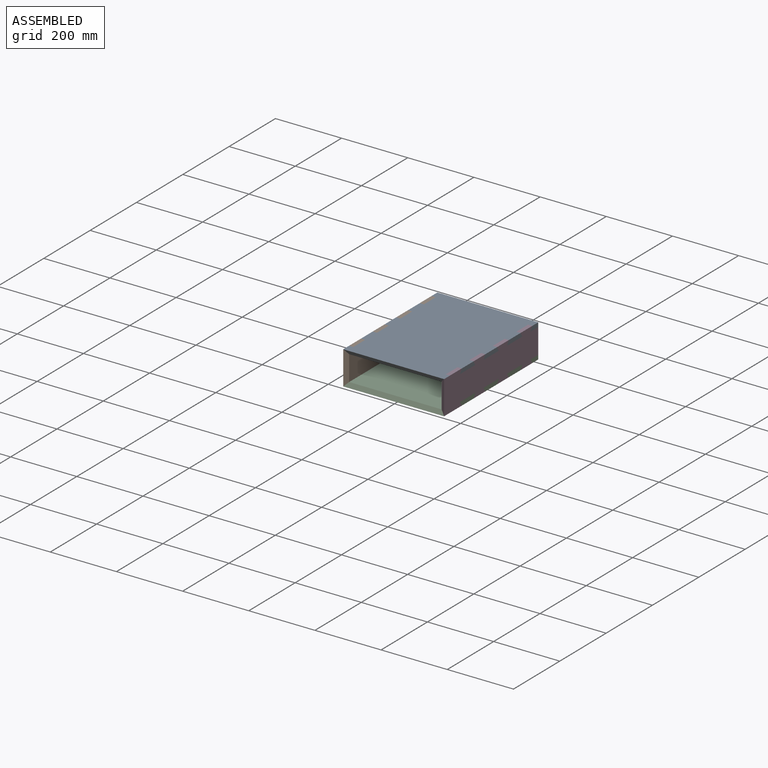
[diagram: assembled view]
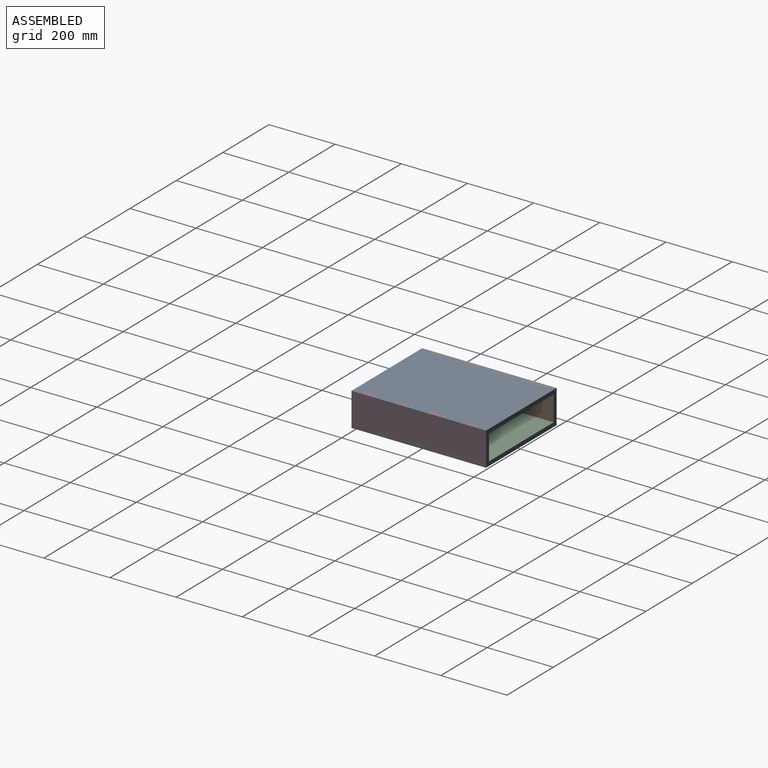
[diagram: assembled view, second angle]
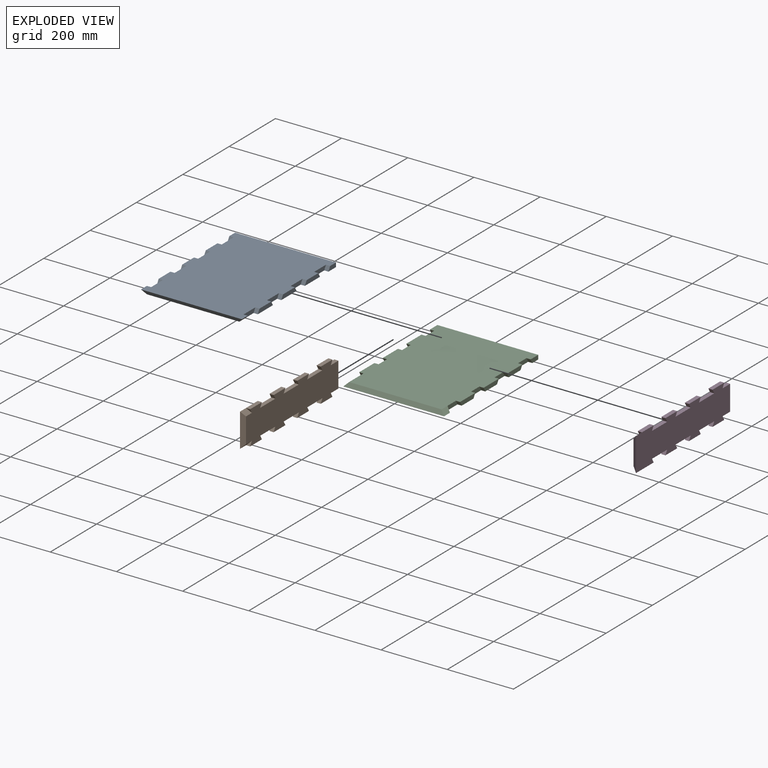
[diagram: exploded view]
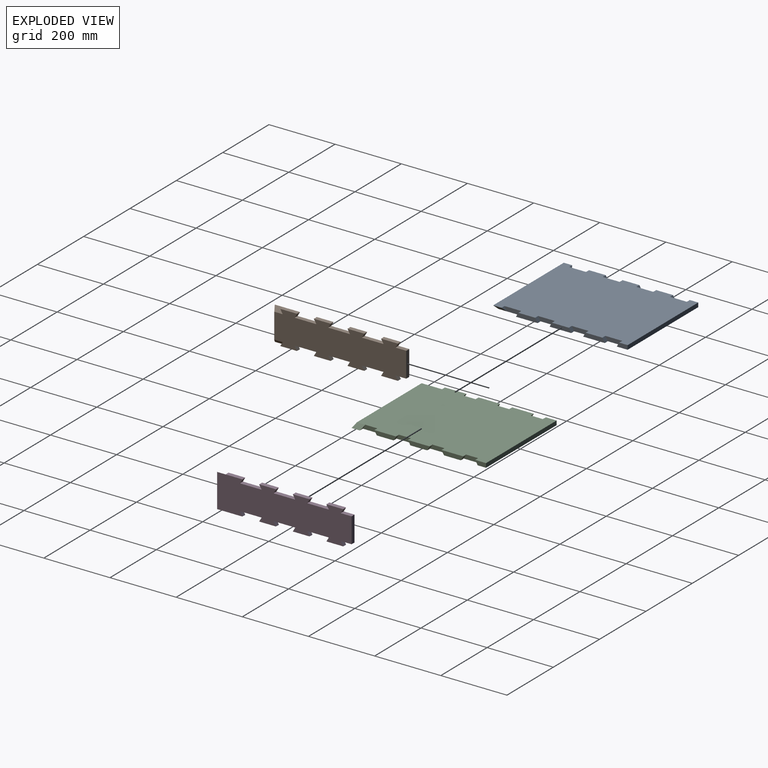
[diagram: exploded view, second angle]
ASSEMBLY  parts=4 mates=3
PART A: 38 faces, bbox 304.8x406.4x12.7 mm
  f0: plane 399.07x304.8mm, normal (0,0,1), area 117319.3mm2, adj f2,f3,f5,f6,f7,f8,f9,f10
  f1: plane 12.7x12.7mm, normal (0,0.87,-0.5), area 93.1mm2, adj f4,f13,f36
  f2: plane 65.46x12.7mm, normal (1,0,0), area 738.3mm2, adj f0,f4,f27,f32
  f3: plane 32.73x12.7mm, normal (1,0,0), area 369.1mm2, adj f0,f4,f11,f33
  f4: plane 406.4x304.8mm, normal (0,0,-1), area 118709.4mm2, adj f1,f2,f3,f5,f6,f7,f8,f9
  f5: plane 65.46x12.7mm, normal (-1,0,0), area 738.3mm2, adj f0,f4,f24,f29
  f6: plane 32.73x12.7mm, normal (-1,0,0), area 369.1mm2, adj f0,f4,f11,f30
  f7: plane 65.46x12.7mm, normal (1,0,0), area 738.3mm2, adj f0,f4,f21,f26
  f8: plane 65.46x12.7mm, normal (-1,0,0), area 738.3mm2, adj f0,f4,f18,f23
  f9: plane 65.46x12.7mm, normal (1,0,0), area 738.3mm2, adj f0,f4,f15,f20
  f10: plane 65.46x12.7mm, normal (-1,0,0), area 738.3mm2, adj f0,f4,f12,f17
  f11: plane 304.8x12.7mm, normal (0,1,0), area 3871mm2, adj f0,f3,f4,f6
  f12: plane 12.7x12.7mm, normal (0,-0.87,-0.5), area 186.2mm2, adj f0,f4,f10,f13
  f13: plane 50.8x12.7mm, normal (-1,0,0), area 552mm2, adj f0,f1,f4,f12
  f14: plane 12.7x12.7mm, normal (0,0.87,-0.5), area 93.1mm2, adj f4,f16,f35
  f15: plane 12.7x12.7mm, normal (0,-0.87,-0.5), area 186.2mm2, adj f0,f4,f9,f16
  f16: plane 50.8x12.7mm, normal (1,0,0), area 552mm2, adj f0,f4,f14,f15
  f17: plane 12.7x12.7mm, normal (0,0.87,-0.5), area 186.2mm2, adj f0,f4,f10,f19
  f18: plane 12.7x12.7mm, normal (0,-0.87,-0.5), area 186.2mm2, adj f0,f4,f8,f19
  f19: plane 50.8x12.7mm, normal (-1,0,0), area 552mm2, adj f0,f4,f17,f18
  f20: plane 12.7x12.7mm, normal (0,0.87,-0.5), area 186.2mm2, adj f0,f4,f9,f22
  f21: plane 12.7x12.7mm, normal (0,-0.87,-0.5), area 186.2mm2, adj f0,f4,f7,f22
  f22: plane 50.8x12.7mm, normal (1,0,0), area 552mm2, adj f0,f4,f20,f21
  f23: plane 12.7x12.7mm, normal (0,0.87,-0.5), area 186.2mm2, adj f0,f4,f8,f25
  f24: plane 12.7x12.7mm, normal (0,-0.87,-0.5), area 186.2mm2, adj f0,f4,f5,f25
  f25: plane 50.8x12.7mm, normal (-1,0,0), area 552mm2, adj f0,f4,f23,f24
  f26: plane 12.7x12.7mm, normal (0,0.87,-0.5), area 186.2mm2, adj f0,f4,f7,f28
  f27: plane 12.7x12.7mm, normal (0,-0.87,-0.5), area 186.2mm2, adj f0,f2,f4,f28
  f28: plane 50.8x12.7mm, normal (1,0,0), area 552mm2, adj f0,f4,f26,f27
  f29: plane 12.7x12.7mm, normal (0,0.87,-0.5), area 186.2mm2, adj f0,f4,f5,f31
  f30: plane 12.7x12.7mm, normal (0,-0.87,-0.5), area 186.2mm2, adj f0,f4,f6,f31
  f31: plane 50.8x12.7mm, normal (-1,0,0), area 552mm2, adj f0,f4,f29,f30
  f32: plane 12.7x12.7mm, normal (0,0.87,-0.5), area 186.2mm2, adj f0,f2,f4,f34
  f33: plane 12.7x12.7mm, normal (0,-0.87,-0.5), area 186.2mm2, adj f0,f3,f4,f34
  f34: plane 50.8x12.7mm, normal (1,0,0), area 552mm2, adj f0,f4,f32,f33
  f35: plane 32.73x12.7mm, normal (0.71,0,0.71), area 456.2mm2, adj f0,f4,f14,f37
  f36: plane 32.73x12.7mm, normal (-0.71,0,0.71), area 456.2mm2, adj f0,f1,f4,f37
  f37: plane 304.8x12.7mm, normal (0,-0.87,0.5), area 4283.6mm2, adj f0,f4,f35,f36
PART B: 38 faces, bbox 406.4x12.7x101.6 mm
  f0: plane 12.7x12.7mm, normal (0.87,0,0.5), area 93.1mm2, adj f10,f16,f36
  f1: plane 32.73x12.7mm, normal (0,0,-1), area 415.7mm2, adj f9,f10,f11,f32
  f2: plane 32.73x12.7mm, normal (0,0,1), area 415.7mm2, adj f9,f10,f11,f31
  f3: plane 65.46x12.7mm, normal (0,0,-1), area 831.4mm2, adj f10,f11,f26,f34
  f4: plane 65.46x12.7mm, normal (0,0,1), area 831.4mm2, adj f10,f11,f25,f29
  f5: plane 65.46x12.7mm, normal (0,0,-1), area 831.4mm2, adj f10,f11,f20,f28
  f6: plane 65.46x12.7mm, normal (0,0,1), area 831.4mm2, adj f10,f11,f19,f23
  f7: plane 65.46x12.7mm, normal (0,0,-1), area 831.4mm2, adj f10,f11,f15,f22
  f8: plane 65.46x12.7mm, normal (0,0,1), area 831.4mm2, adj f10,f11,f14,f17
  f9: plane 76.2x12.7mm, normal (-1,0,0), area 967.7mm2, adj f1,f2,f10,f11
  f10: plane 399.07x101.6mm, normal (0,1,0), area 34825.3mm2, adj f0,f1,f2,f3,f4,f5,f6,f7
  f11: plane 406.4x101.6mm, normal (0,-1,0), area 36122.3mm2, adj f1,f2,f3,f4,f5,f6,f7,f8
  f12: plane 12.7x12.7mm, normal (0.87,0,-0.5), area 93.1mm2, adj f10,f13,f35
  f13: plane 50.8x12.7mm, normal (0,0,1), area 645.2mm2, adj f10,f11,f12,f14
  f14: plane 12.7x12.7mm, normal (-0.87,0,-0.5), area 186.2mm2, adj f8,f10,f11,f13
  f15: plane 12.7x12.7mm, normal (-0.87,0,0.5), area 186.2mm2, adj f7,f10,f11,f16
  f16: plane 50.8x12.7mm, normal (0,0,-1), area 645.2mm2, adj f0,f10,f11,f15
  f17: plane 12.7x12.7mm, normal (0.87,0,-0.5), area 186.2mm2, adj f8,f10,f11,f18
  f18: plane 50.8x12.7mm, normal (0,0,1), area 645.2mm2, adj f10,f11,f17,f19
  f19: plane 12.7x12.7mm, normal (-0.87,0,-0.5), area 186.2mm2, adj f6,f10,f11,f18
  f20: plane 12.7x12.7mm, normal (-0.87,0,0.5), area 186.2mm2, adj f5,f10,f11,f21
  f21: plane 50.8x12.7mm, normal (0,0,-1), area 645.2mm2, adj f10,f11,f20,f22
  f22: plane 12.7x12.7mm, normal (0.87,0,0.5), area 186.2mm2, adj f7,f10,f11,f21
  f23: plane 12.7x12.7mm, normal (0.87,0,-0.5), area 186.2mm2, adj f6,f10,f11,f24
  f24: plane 50.8x12.7mm, normal (0,0,1), area 645.2mm2, adj f10,f11,f23,f25
  f25: plane 12.7x12.7mm, normal (-0.87,0,-0.5), area 186.2mm2, adj f4,f10,f11,f24
  f26: plane 12.7x12.7mm, normal (-0.87,0,0.5), area 186.2mm2, adj f3,f10,f11,f27
  f27: plane 50.8x12.7mm, normal (0,0,-1), area 645.2mm2, adj f10,f11,f26,f28
  f28: plane 12.7x12.7mm, normal (0.87,0,0.5), area 186.2mm2, adj f5,f10,f11,f27
  f29: plane 12.7x12.7mm, normal (0.87,0,-0.5), area 186.2mm2, adj f4,f10,f11,f30
  f30: plane 50.8x12.7mm, normal (0,0,1), area 645.2mm2, adj f10,f11,f29,f31
  f31: plane 12.7x12.7mm, normal (-0.87,0,-0.5), area 186.2mm2, adj f2,f10,f11,f30
  f32: plane 12.7x12.7mm, normal (-0.87,0,0.5), area 186.2mm2, adj f1,f10,f11,f33
  f33: plane 50.8x12.7mm, normal (0,0,-1), area 645.2mm2, adj f10,f11,f32,f34
  f34: plane 12.7x12.7mm, normal (0.87,0,0.5), area 186.2mm2, adj f3,f10,f11,f33
  f35: plane 32.73x12.7mm, normal (0,0.71,0.71), area 456.2mm2, adj f10,f11,f12,f37
  f36: plane 32.73x12.7mm, normal (0,0.71,-0.71), area 456.2mm2, adj f0,f10,f11,f37
  f37: plane 101.6x12.7mm, normal (0.87,0.5,0), area 1303.7mm2, adj f10,f11,f35,f36
PART C: same geometry as A
PART D: same geometry as B
PLACE A rot(axis=(0,1,0),180deg) t=(0,0,101.6)mm
PLACE B rot(axis=(0,0,-1),90deg) t=(-152.4,2.38,12.7)mm
PLACE C at identity fixed
PLACE D rot(axis=(0.71,-0.71,0),180deg) t=(152.4,2.38,88.9)mm
MATE fastened D.f11 <-> C.f7  axis (1,0,0) through (152.4,0,12.7)mm
MATE fastened B.f11 <-> C.f8  axis (-1,0,0) through (-152.4,0,12.7)mm
MATE fastened A.f7 <-> B.f11  axis (-1,0,0) through (-152.4,0,88.9)mm
